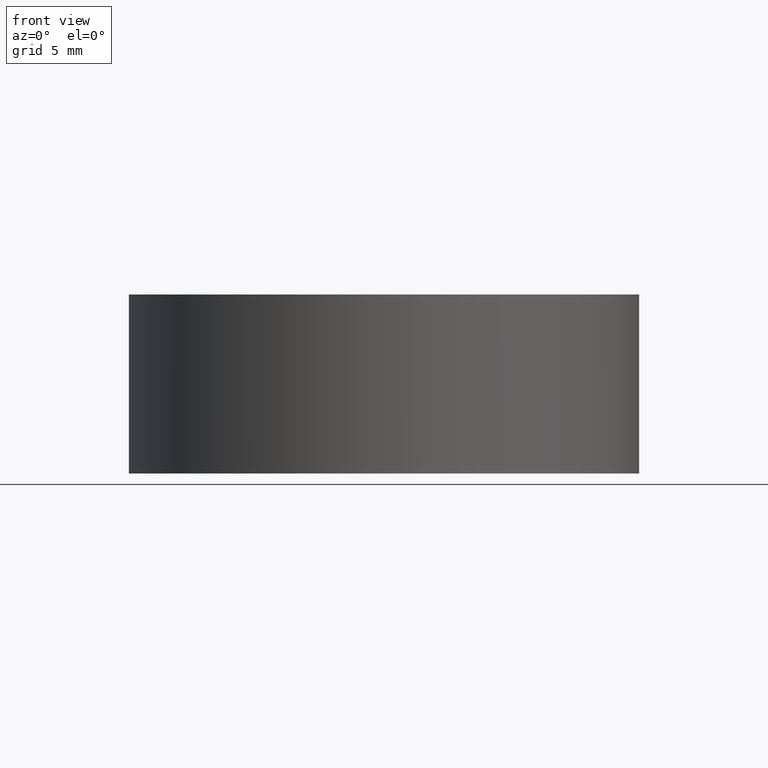
[diagram: clean part render]
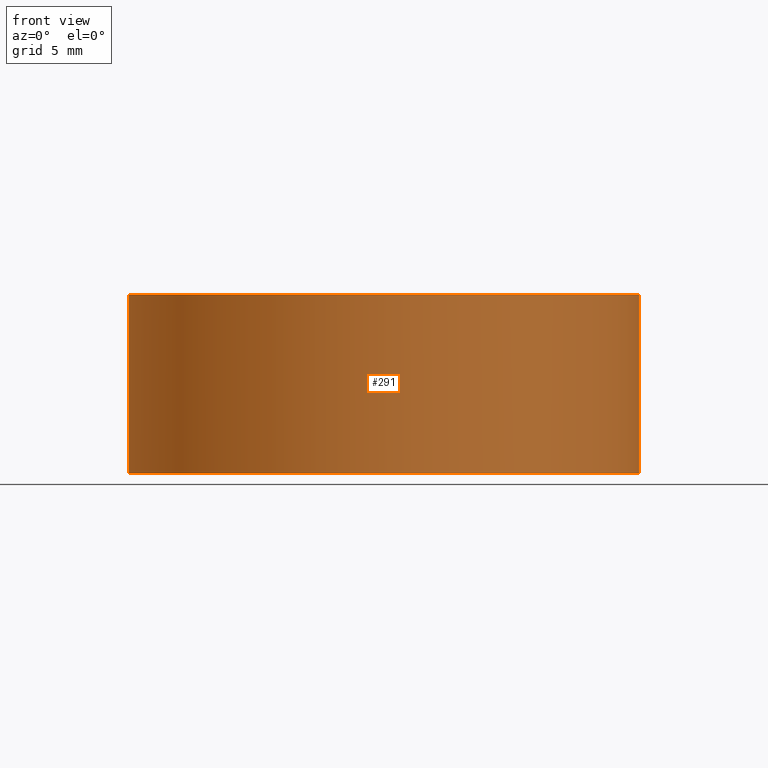
[diagram: same view with one face highlighted and labeled with its STEP entity id]
A machine part, front view. The second image highlights one B-rep face of the part: STEP entity #291.
In plain terms, the highlighted cylindrical surface (partial cylindrical patch) has radius 11.125 mm, axis along (-0, -0, -1).
Its self-contained STEP definition (entity closure, byte-faithful):
#4 = CARTESIAN_POINT ( 'NONE',  ( 11.12500000000000000, 1.362419564051430300E-015, 7.799999999999999800 ) ) ;
#13 = DIRECTION ( 'NONE',  ( 1.000000000000000000, 0.0000000000000000000, 0.0000000000000000000 ) ) ;
#93 = AXIS2_PLACEMENT_3D ( 'NONE', #551, #169, #118 ) ;
#113 = CIRCLE ( 'NONE', #139, 11.12500000000000000 ) ;
#118 = DIRECTION ( 'NONE',  ( 1.000000000000000000, 0.0000000000000000000, 0.0000000000000000000 ) ) ;
#139 = AXIS2_PLACEMENT_3D ( 'NONE', #406, #321, #13 ) ;
#169 = DIRECTION ( 'NONE',  ( 0.0000000000000000000, 0.0000000000000000000, 1.000000000000000000 ) ) ;
#177 = VERTEX_POINT ( 'NONE', #314 ) ;
#203 = EDGE_CURVE ( 'NONE', #555, #177, #302, .T. ) ;
#234 = LINE ( 'NONE', #299, #613 ) ;
#279 = EDGE_CURVE ( 'NONE', #404, #555, #460, .T. ) ;
#291 = ADVANCED_FACE ( 'NONE', ( #499 ), #341, .T. ) ;
#293 = CARTESIAN_POINT ( 'NONE',  ( 11.12500000000000000, 1.362419564051430300E-015, 7.799999999999999800 ) ) ;
#299 = CARTESIAN_POINT ( 'NONE',  ( -11.12500000000000000, 0.0000000000000000000, 7.799999999999999800 ) ) ;
#302 = LINE ( 'NONE', #4, #526 ) ;
#304 = VERTEX_POINT ( 'NONE', #446 ) ;
#313 = EDGE_CURVE ( 'NONE', #304, #177, #113, .T. ) ;
#314 = CARTESIAN_POINT ( 'NONE',  ( 11.12500000000000000, 1.362419564051430300E-015, 0.0000000000000000000 ) ) ;
#321 = DIRECTION ( 'NONE',  ( 0.0000000000000000000, 0.0000000000000000000, 1.000000000000000000 ) ) ;
#322 = CARTESIAN_POINT ( 'NONE',  ( 0.0000000000000000000, 0.0000000000000000000, 7.799999999999999800 ) ) ;
#328 = DIRECTION ( 'NONE',  ( -1.000000000000000000, 0.0000000000000000000, 0.0000000000000000000 ) ) ;
#336 = DIRECTION ( 'NONE',  ( -0.0000000000000000000, -0.0000000000000000000, -1.000000000000000000 ) ) ;
#341 = CYLINDRICAL_SURFACE ( 'NONE', #397, 11.12500000000000000 ) ;
#352 = ORIENTED_EDGE ( 'NONE', *, *, #313, .T. ) ;
#397 = AXIS2_PLACEMENT_3D ( 'NONE', #322, #489, #328 ) ;
#404 = VERTEX_POINT ( 'NONE', #609 ) ;
#406 = CARTESIAN_POINT ( 'NONE',  ( 0.0000000000000000000, 0.0000000000000000000, 0.0000000000000000000 ) ) ;
#442 = DIRECTION ( 'NONE',  ( -0.0000000000000000000, -0.0000000000000000000, -1.000000000000000000 ) ) ;
#446 = CARTESIAN_POINT ( 'NONE',  ( -11.12500000000000000, 0.0000000000000000000, 0.0000000000000000000 ) ) ;
#456 = ORIENTED_EDGE ( 'NONE', *, *, #203, .F. ) ;
#460 = CIRCLE ( 'NONE', #93, 11.12500000000000000 ) ;
#477 = ORIENTED_EDGE ( 'NONE', *, *, #279, .F. ) ;
#489 = DIRECTION ( 'NONE',  ( -0.0000000000000000000, -0.0000000000000000000, -1.000000000000000000 ) ) ;
#495 = ORIENTED_EDGE ( 'NONE', *, *, #522, .T. ) ;
#499 = FACE_OUTER_BOUND ( 'NONE', #639, .T. ) ;
#522 = EDGE_CURVE ( 'NONE', #404, #304, #234, .T. ) ;
#526 = VECTOR ( 'NONE', #442, 1000.000000000000000 ) ;
#551 = CARTESIAN_POINT ( 'NONE',  ( 0.0000000000000000000, 0.0000000000000000000, 7.799999999999999800 ) ) ;
#555 = VERTEX_POINT ( 'NONE', #293 ) ;
#609 = CARTESIAN_POINT ( 'NONE',  ( -11.12500000000000000, 0.0000000000000000000, 7.799999999999999800 ) ) ;
#613 = VECTOR ( 'NONE', #336, 1000.000000000000000 ) ;
#639 = EDGE_LOOP ( 'NONE', ( #456, #477, #495, #352 ) ) ;